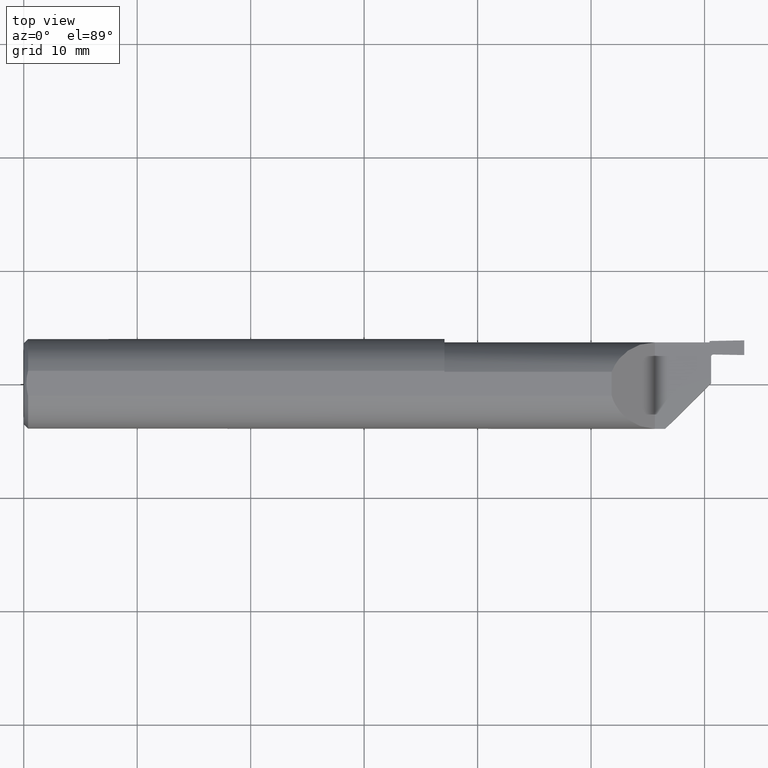
[diagram: clean part render]
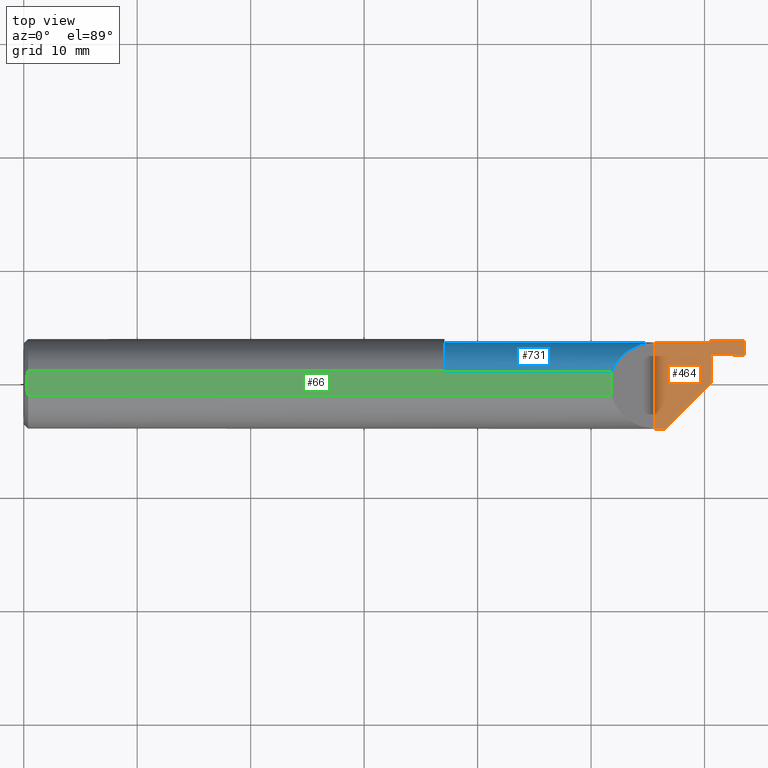
[diagram: same view with three faces highlighted in distinct colors, each labeled with its STEP entity id]
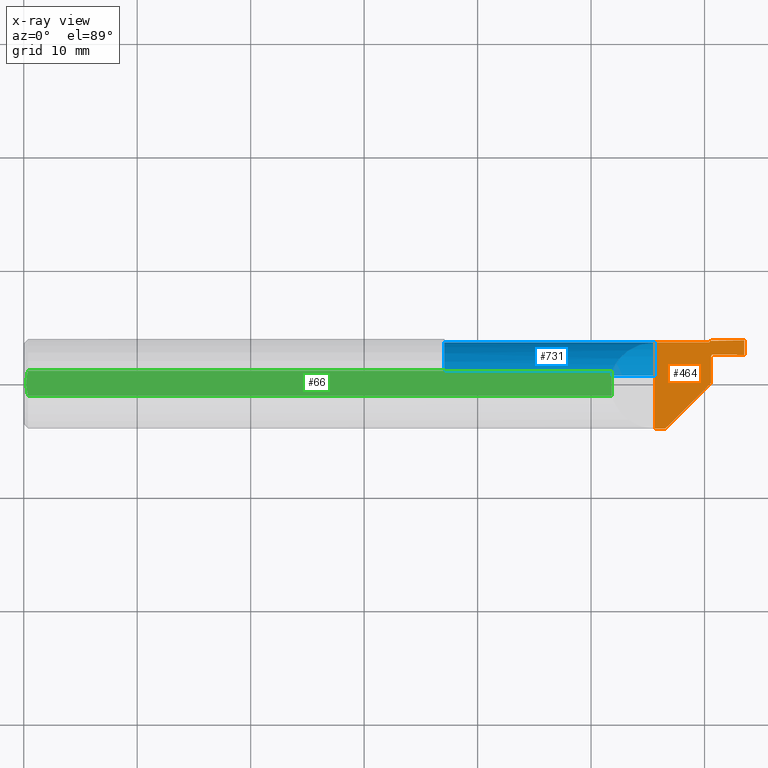
[diagram: x-ray of the same camera — body ghosted, the three highlighted faces saturated]
A machine part, top view with three faces highlighted in distinct colors.
The next image is the same camera in x-ray (body ghosted, the three faces saturated) — at least one of them is partly hidden behind the body in this view.
Their STEP definitions:

[orange] entity #464 — the highlighted planar face has unit normal (0, 0, -1).
#14 = EDGE_CURVE ( 'NONE', #148, #140, #558, .T. ) ;
#20 = CARTESIAN_POINT ( 'NONE',  ( 2.377000000000000224, 0.1440992383597803073, 0.000000000000000000 ) ) ;
#41 = VERTEX_POINT ( 'NONE', #504 ) ;
#44 = PLANE ( 'NONE',  #367 ) ;
#49 = VECTOR ( 'NONE', #631, 39.37007874015748143 ) ;
#55 = CARTESIAN_POINT ( 'NONE',  ( 2.189999999999999947, -0.2560999999999999943, 0.000000000000000000 ) ) ;
#57 = ORIENTED_EDGE ( 'NONE', *, *, #275, .F. ) ;
#59 = ORIENTED_EDGE ( 'NONE', *, *, #231, .T. ) ;
#64 = CARTESIAN_POINT ( 'NONE',  ( 2.500000000000000000, 0.1510992383597803412, 2.987958743070287587E-17 ) ) ;
#80 = DIRECTION ( 'NONE',  ( -1.000000000000000000, 0.000000000000000000, 0.000000000000000000 ) ) ;
#135 = DIRECTION ( 'NONE',  ( -1.000000000000000000, 0.000000000000000000, 0.000000000000000000 ) ) ;
#139 = CARTESIAN_POINT ( 'NONE',  ( 2.630067462402516654, 0.1533695743610629103, 0.000000000000000000 ) ) ;
#140 = VERTEX_POINT ( 'NONE', #517 ) ;
#148 = VERTEX_POINT ( 'NONE', #774 ) ;
#164 = VERTEX_POINT ( 'NONE', #64 ) ;
#168 = CARTESIAN_POINT ( 'NONE',  ( 0.000000000000000000, -0.1560999999999999888, 0.000000000000000000 ) ) ;
#185 = DIRECTION ( 'NONE',  ( 0.000000000000000000, 1.000000000000000000, 0.000000000000000000 ) ) ;
#191 = EDGE_CURVE ( 'NONE', #824, #164, #376, .T. ) ;
#199 = CARTESIAN_POINT ( 'NONE',  ( 2.157499999999999751, -0.2235999999999995491, 0.000000000000000000 ) ) ;
#201 = EDGE_CURVE ( 'NONE', #333, #530, #651, .T. ) ;
#210 = DIRECTION ( 'NONE',  ( 0.000000000000000000, 1.000000000000000000, 0.000000000000000000 ) ) ;
#211 = AXIS2_PLACEMENT_3D ( 'NONE', #466, #527, #80 ) ;
#216 = LINE ( 'NONE', #336, #612 ) ;
#229 = ORIENTED_EDGE ( 'NONE', *, *, #372, .T. ) ;
#231 = EDGE_CURVE ( 'NONE', #513, #164, #262, .T. ) ;
#232 = CARTESIAN_POINT ( 'NONE',  ( 2.500000000000000000, 0.1000992383597803653, 0.000000000000000000 ) ) ;
#240 = EDGE_CURVE ( 'NONE', #148, #41, #521, .T. ) ;
#241 = VECTOR ( 'NONE', #709, 39.37007874015748143 ) ;
#245 = EDGE_CURVE ( 'NONE', #530, #824, #388, .T. ) ;
#251 = AXIS2_PLACEMENT_3D ( 'NONE', #525, #765, #135 ) ;
#255 = CARTESIAN_POINT ( 'NONE',  ( 1.460000000000000187, 0.1440992383597802795, 0.000000000000000000 ) ) ;
#262 = LINE ( 'NONE', #325, #289 ) ;
#264 = VECTOR ( 'NONE', #712, 39.37007874015748854 ) ;
#275 = EDGE_CURVE ( 'NONE', #782, #333, #827, .T. ) ;
#283 = DIRECTION ( 'NONE',  ( 0.9998476951563914916, -0.01745240643727535151, 0.000000000000000000 ) ) ;
#285 = VERTEX_POINT ( 'NONE', #403 ) ;
#287 = CARTESIAN_POINT ( 'NONE',  ( 2.379999999999999893, 0.1490046305683959127, 0.000000000000000000 ) ) ;
#289 = VECTOR ( 'NONE', #185, 39.37007874015748143 ) ;
#296 = FACE_OUTER_BOUND ( 'NONE', #717, .T. ) ;
#325 = CARTESIAN_POINT ( 'NONE',  ( 2.500000000000000000, -0.2560999999999999943, 0.000000000000000000 ) ) ;
#329 = CARTESIAN_POINT ( 'NONE',  ( 2.196310008884322595, 0.1054001668727518604, 0.000000000000000000 ) ) ;
#333 = VERTEX_POINT ( 'NONE', #20 ) ;
#336 = CARTESIAN_POINT ( 'NONE',  ( 2.385000000000000231, -0.2560999999999999943, 0.000000000000000000 ) ) ;
#345 = ORIENTED_EDGE ( 'NONE', *, *, #201, .F. ) ;
#352 = CARTESIAN_POINT ( 'NONE',  ( 2.189999999999999947, -0.2560999999999999943, 0.000000000000000000 ) ) ;
#356 = VECTOR ( 'NONE', #721, 39.37007874015748143 ) ;
#367 = AXIS2_PLACEMENT_3D ( 'NONE', #352, #754, #697 ) ;
#372 = EDGE_CURVE ( 'NONE', #621, #513, #528, .T. ) ;
#373 = LINE ( 'NONE', #55, #495 ) ;
#376 = LINE ( 'NONE', #139, #264 ) ;
#385 = DIRECTION ( 'NONE',  ( 3.711749991391663214E-17, 1.000000000000000000, 0.000000000000000000 ) ) ;
#388 = LINE ( 'NONE', #719, #566 ) ;
#403 = CARTESIAN_POINT ( 'NONE',  ( 2.385000000000000231, 0.09396571168274749086, 0.000000000000000000 ) ) ;
#410 = VECTOR ( 'NONE', #283, 39.37007874015747433 ) ;
#428 = ORIENTED_EDGE ( 'NONE', *, *, #752, .T. ) ;
#460 = CARTESIAN_POINT ( 'NONE',  ( 2.189999999999999947, 0.1440992383597802240, 0.000000000000000000 ) ) ;
#463 = ORIENTED_EDGE ( 'NONE', *, *, #716, .T. ) ;
#464 = ADVANCED_FACE ( 'NONE', ( #296 ), #44, .F. ) ;
#466 = CARTESIAN_POINT ( 'NONE',  ( 2.393000000000000238, 0.09396571168274749086, 0.000000000000000000 ) ) ;
#472 = ORIENTED_EDGE ( 'NONE', *, *, #588, .F. ) ;
#479 = ORIENTED_EDGE ( 'NONE', *, *, #14, .F. ) ;
#495 = VECTOR ( 'NONE', #655, 39.37007874015748143 ) ;
#504 = CARTESIAN_POINT ( 'NONE',  ( 2.385000000000000231, 0.003900000000000025408, 0.000000000000000000 ) ) ;
#513 = VERTEX_POINT ( 'NONE', #232 ) ;
#517 = CARTESIAN_POINT ( 'NONE',  ( 2.189999999999999947, -0.1560999999999999888, 0.000000000000000000 ) ) ;
#521 = LINE ( 'NONE', #199, #356 ) ;
#525 = CARTESIAN_POINT ( 'NONE',  ( 2.377000000000000224, 0.1470992383597802822, 0.000000000000000000 ) ) ;
#527 = DIRECTION ( 'NONE',  ( 0.000000000000000000, 0.000000000000000000, -1.000000000000000000 ) ) ;
#528 = LINE ( 'NONE', #329, #410 ) ;
#530 = VERTEX_POINT ( 'NONE', #638 ) ;
#558 = LINE ( 'NONE', #168, #49 ) ;
#566 = VECTOR ( 'NONE', #385, 39.37007874015748143 ) ;
#588 = EDGE_CURVE ( 'NONE', #140, #782, #373, .T. ) ;
#612 = VECTOR ( 'NONE', #210, 39.37007874015748143 ) ;
#621 = VERTEX_POINT ( 'NONE', #708 ) ;
#631 = DIRECTION ( 'NONE',  ( -1.000000000000000000, -0.000000000000000000, -0.000000000000000000 ) ) ;
#638 = CARTESIAN_POINT ( 'NONE',  ( 2.379999999999999893, 0.1470992383597803099, 0.000000000000000000 ) ) ;
#651 = CIRCLE ( 'NONE', #251, 0.002999999999999940648 ) ;
#652 = ORIENTED_EDGE ( 'NONE', *, *, #240, .T. ) ;
#655 = DIRECTION ( 'NONE',  ( 0.000000000000000000, 1.000000000000000000, 0.000000000000000000 ) ) ;
#681 = ORIENTED_EDGE ( 'NONE', *, *, #191, .F. ) ;
#697 = DIRECTION ( 'NONE',  ( -1.000000000000000000, 0.000000000000000000, -0.000000000000000000 ) ) ;
#708 = CARTESIAN_POINT ( 'NONE',  ( 2.393139705841341502, 0.1019644917325672473, -2.881245930817777536E-17 ) ) ;
#709 = DIRECTION ( 'NONE',  ( 1.000000000000000000, -3.711749991391663214E-17, 0.000000000000000000 ) ) ;
#712 = DIRECTION ( 'NONE',  ( 0.9998476951563914916, 0.01745240643726934937, 0.000000000000000000 ) ) ;
#714 = ORIENTED_EDGE ( 'NONE', *, *, #245, .F. ) ;
#716 = EDGE_CURVE ( 'NONE', #285, #621, #825, .T. ) ;
#717 = EDGE_LOOP ( 'NONE', ( #714, #345, #57, #472, #479, #652, #428, #463, #229, #59, #681 ) ) ;
#719 = CARTESIAN_POINT ( 'NONE',  ( 2.379999999999999893, -0.2560999999999999943, 0.000000000000000000 ) ) ;
#721 = DIRECTION ( 'NONE',  ( 0.7071067811865486830, 0.7071067811865464625, 0.000000000000000000 ) ) ;
#752 = EDGE_CURVE ( 'NONE', #41, #285, #216, .T. ) ;
#754 = DIRECTION ( 'NONE',  ( 0.000000000000000000, 0.000000000000000000, -1.000000000000000000 ) ) ;
#765 = DIRECTION ( 'NONE',  ( -0.000000000000000000, -0.000000000000000000, 1.000000000000000000 ) ) ;
#774 = CARTESIAN_POINT ( 'NONE',  ( 2.224999999999999645, -0.1560999999999999888, 0.000000000000000000 ) ) ;
#782 = VERTEX_POINT ( 'NONE', #460 ) ;
#824 = VERTEX_POINT ( 'NONE', #287 ) ;
#825 = CIRCLE ( 'NONE', #211, 0.008000000000000024453 ) ;
#827 = LINE ( 'NONE', #255, #241 ) ;

[blue] entity #731 — the highlighted cylindrical surface (partial cylindrical patch) has radius 4.064 mm, axis along (-1, 0, -0).
#2 = CARTESIAN_POINT ( 'NONE',  ( 1.918500000000000316, 0.03081474338883895270, -0.1530283032313957403 ) ) ;
#5 = CARTESIAN_POINT ( 'NONE',  ( 2.371244399044610596, 0.1398354349246319905, -0.03676311797255334135 ) ) ;
#11 = DIRECTION ( 'NONE',  ( 0.000000000000000000, -1.000000000000000000, 0.000000000000000000 ) ) ;
#19 = DIRECTION ( 'NONE',  ( 1.000000000000000000, -3.711749991391663214E-17, 0.000000000000000000 ) ) ;
#20 = CARTESIAN_POINT ( 'NONE',  ( 2.377000000000000224, 0.1440992383597803073, 0.000000000000000000 ) ) ;
#21 = CIRCLE ( 'NONE', #760, 0.1599999999999999756 ) ;
#24 = AXIS2_PLACEMENT_3D ( 'NONE', #40, #633, #47 ) ;
#25 = CARTESIAN_POINT ( 'NONE',  ( 2.377000000000000224, 0.1418538182356731125, -0.02671128091613287833 ) ) ;
#35 = EDGE_LOOP ( 'NONE', ( #623, #102, #260, #660, #225, #162, #224, #156, #705, #484 ) ) ;
#40 = CARTESIAN_POINT ( 'NONE',  ( 2.189999999999999947, -0.01590076164021980015, 0.000000000000000000 ) ) ;
#43 = EDGE_CURVE ( 'NONE', #318, #344, #21, .T. ) ;
#47 = DIRECTION ( 'NONE',  ( 0.000000000000000000, 0.000000000000000000, -1.000000000000000000 ) ) ;
#58 = B_SPLINE_CURVE_WITH_KNOTS ( 'NONE', 3,
 ( #124, #375, #265, #65, #641, #653, #383, #826, #5, #829, #718, #197 ),
 .UNSPECIFIED., .F., .F.,
 ( 4, 2, 2, 2, 2, 4 ),
 ( 6.925468430849999991E-05, 0.0001140880610904695253, 0.0001589214378724390642, 0.0002485881914363778167, 0.0004279216985642606344, 0.0007865887128200264866 ),
 .UNSPECIFIED. ) ;
#65 = CARTESIAN_POINT ( 'NONE',  ( 2.373515878567528326, 0.1416355429769736440, -0.02797407924118477593 ) ) ;
#102 = ORIENTED_EDGE ( 'NONE', *, *, #658, .F. ) ;
#120 = CARTESIAN_POINT ( 'NONE',  ( 2.371295404501523318, 0.08075183299855108465, -0.1377838268075109174 ) ) ;
#124 = CARTESIAN_POINT ( 'NONE',  ( 2.375229166716647189, 0.1418801891223627210, -0.02655506686972410046 ) ) ;
#132 = CARTESIAN_POINT ( 'NONE',  ( 2.039999999999999591, 0.03950672882812745340, 0.1500999999999999834 ) ) ;
#137 = CARTESIAN_POINT ( 'NONE',  ( 2.370342329189448094, 0.1353534810585909909, -0.05217426631596511211 ) ) ;
#156 = ORIENTED_EDGE ( 'NONE', *, *, #597, .T. ) ;
#162 = ORIENTED_EDGE ( 'NONE', *, *, #348, .F. ) ;
#166 = CARTESIAN_POINT ( 'NONE',  ( 2.377000000000000224, -0.01590076164021980709, 0.000000000000000000 ) ) ;
#182 =( BOUNDED_CURVE ( )  B_SPLINE_CURVE ( 3, ( #368, #324, #261, #592 ),
 .UNSPECIFIED., .F., .T. ) 
 B_SPLINE_CURVE_WITH_KNOTS ( ( 4, 4 ),
 ( 4.713013980425380112, 5.929564525929066576 ),
 .UNSPECIFIED. ) 
 CURVE ( )  GEOMETRIC_REPRESENTATION_ITEM ( )  RATIONAL_B_SPLINE_CURVE ( ( 1.000000000000000000, 0.8804232255846620170, 0.8804232255846620170, 1.000000000000000000 ) ) 
 REPRESENTATION_ITEM ( '' )  );
#184 = CARTESIAN_POINT ( 'NONE',  ( 2.370342329189448094, 0.1353534810585909909, -0.05217426631596511211 ) ) ;
#197 = CARTESIAN_POINT ( 'NONE',  ( 2.370342329189448094, 0.1353534810585909909, -0.05217426631596511211 ) ) ;
#208 = VERTEX_POINT ( 'NONE', #132 ) ;
#219 = EDGE_CURVE ( 'NONE', #776, #344, #457, .T. ) ;
#224 = ORIENTED_EDGE ( 'NONE', *, *, #569, .T. ) ;
#225 = ORIENTED_EDGE ( 'NONE', *, *, #474, .T. ) ;
#241 = VECTOR ( 'NONE', #709, 39.37007874015748143 ) ;
#255 = CARTESIAN_POINT ( 'NONE',  ( 1.460000000000000187, 0.1440992383597802795, 0.000000000000000000 ) ) ;
#258 = CARTESIAN_POINT ( 'NONE',  ( 2.370639515830912813, 0.1183276697718876336, -0.1015324341320246460 ) ) ;
#260 = ORIENTED_EDGE ( 'NONE', *, *, #544, .F. ) ;
#261 = CARTESIAN_POINT ( 'NONE',  ( 2.063975418773851711, 0.1044566178690502362, 0.1261245812261483912 ) ) ;
#265 = CARTESIAN_POINT ( 'NONE',  ( 2.374165026253837407, 0.1418026415305609633, -0.02701616201808509227 ) ) ;
#275 = EDGE_CURVE ( 'NONE', #782, #333, #827, .T. ) ;
#282 = CARTESIAN_POINT ( 'NONE',  ( 1.460000000000000187, -0.01590076164021977240, 0.000000000000000000 ) ) ;
#294 = DIRECTION ( 'NONE',  ( -1.000000000000000000, 3.711749991391663214E-17, -0.000000000000000000 ) ) ;
#301 = CARTESIAN_POINT ( 'NONE',  ( 1.460000000000000187, -0.01590076164021977240, 0.000000000000000000 ) ) ;
#318 = VERTEX_POINT ( 'NONE', #601 ) ;
#324 = CARTESIAN_POINT ( 'NONE',  ( 2.120766287695780239, 0.1440559360311356729, 0.06933371230421989106 ) ) ;
#333 = VERTEX_POINT ( 'NONE', #20 ) ;
#337 = CARTESIAN_POINT ( 'NONE',  ( 2.376409719787352159, 0.1418626297334948938, -0.02665924095077311026 ) ) ;
#344 = VERTEX_POINT ( 'NONE', #659 ) ;
#347 = CARTESIAN_POINT ( 'NONE',  ( 2.375229166716647189, 0.1418801891223627210, -0.02655506686972410046 ) ) ;
#348 = EDGE_CURVE ( 'NONE', #587, #771, #445, .T. ) ;
#368 = CARTESIAN_POINT ( 'NONE',  ( 2.189999999999999947, 0.1440992071097771388, 9.999999999993541345E-05 ) ) ;
#375 = CARTESIAN_POINT ( 'NONE',  ( 2.374634460130373270, 0.1418890240198467378, -0.02650257298851747823 ) ) ;
#381 = CARTESIAN_POINT ( 'NONE',  ( 2.375229166716647189, 0.1418801891223627210, -0.02655506686972410046 ) ) ;
#383 = CARTESIAN_POINT ( 'NONE',  ( 2.372340772030441247, 0.1410310789320680103, -0.03120366545082840781 ) ) ;
#445 = B_SPLINE_CURVE_WITH_KNOTS ( 'NONE', 3,
 ( #347, #742, #337, #664 ),
 .UNSPECIFIED., .F., .F.,
 ( 4, 4 ),
 ( 6.992893892674702526E-18, 4.515880543215112651E-05 ),
 .UNSPECIFIED. ) ;
#456 = LINE ( 'NONE', #663, #661 ) ;
#457 = LINE ( 'NONE', #2, #508 ) ;
#460 = CARTESIAN_POINT ( 'NONE',  ( 2.189999999999999947, 0.1440992383597802240, 0.000000000000000000 ) ) ;
#465 = AXIS2_PLACEMENT_3D ( 'NONE', #282, #677, #11 ) ;
#474 = EDGE_CURVE ( 'NONE', #333, #771, #789, .T. ) ;
#484 = ORIENTED_EDGE ( 'NONE', *, *, #43, .F. ) ;
#508 = VECTOR ( 'NONE', #590, 39.37007874015748143 ) ;
#523 = AXIS2_PLACEMENT_3D ( 'NONE', #166, #808, #806 ) ;
#531 = CYLINDRICAL_SURFACE ( 'NONE', #465, 0.1600000000000000311 ) ;
#535 = CARTESIAN_POINT ( 'NONE',  ( 2.372167059642986242, 0.03081474338882099831, -0.1530283032314002645 ) ) ;
#544 = EDGE_CURVE ( 'NONE', #782, #725, #549, .T. ) ;
#549 = CIRCLE ( 'NONE', #24, 0.1600000000000000311 ) ;
#569 = EDGE_CURVE ( 'NONE', #587, #801, #58, .T. ) ;
#587 = VERTEX_POINT ( 'NONE', #381 ) ;
#590 = DIRECTION ( 'NONE',  ( -1.000000000000000000, 3.711749991391663214E-17, -0.000000000000000000 ) ) ;
#592 = CARTESIAN_POINT ( 'NONE',  ( 2.039999999999999591, 0.03950672882812745340, 0.1500999999999999834 ) ) ;
#597 = EDGE_CURVE ( 'NONE', #801, #776, #723, .T. ) ;
#601 = CARTESIAN_POINT ( 'NONE',  ( 1.460000000000000187, 0.03950672882812750197, 0.1500999999999999834 ) ) ;
#603 = FACE_OUTER_BOUND ( 'NONE', #35, .T. ) ;
#623 = ORIENTED_EDGE ( 'NONE', *, *, #704, .T. ) ;
#633 = DIRECTION ( 'NONE',  ( 1.000000000000000000, 0.000000000000000000, -0.000000000000000000 ) ) ;
#641 = CARTESIAN_POINT ( 'NONE',  ( 2.373276407737987981, 0.1415419878271635956, -0.02849697985933954958 ) ) ;
#644 = CARTESIAN_POINT ( 'NONE',  ( 2.372167059642986242, 0.03081474338882099831, -0.1530283032314002645 ) ) ;
#653 = CARTESIAN_POINT ( 'NONE',  ( 2.372637208118146823, 0.1412452079022298024, -0.03010536730128773875 ) ) ;
#658 = EDGE_CURVE ( 'NONE', #725, #208, #182, .T. ) ;
#659 = CARTESIAN_POINT ( 'NONE',  ( 1.460000000000000187, 0.03081474338883832820, -0.1530283032313958513 ) ) ;
#660 = ORIENTED_EDGE ( 'NONE', *, *, #275, .T. ) ;
#661 = VECTOR ( 'NONE', #19, 39.37007874015748143 ) ;
#663 = CARTESIAN_POINT ( 'NONE',  ( 1.460000000000000187, 0.03950672882812769626, 0.1500999999999999834 ) ) ;
#664 = CARTESIAN_POINT ( 'NONE',  ( 2.377000000000000224, 0.1418538182356731125, -0.02671128091613287833 ) ) ;
#677 = DIRECTION ( 'NONE',  ( -1.000000000000000000, 3.711749991391663214E-17, -0.000000000000000000 ) ) ;
#704 = EDGE_CURVE ( 'NONE', #318, #208, #456, .T. ) ;
#705 = ORIENTED_EDGE ( 'NONE', *, *, #219, .T. ) ;
#709 = DIRECTION ( 'NONE',  ( 1.000000000000000000, -3.711749991391663214E-17, 0.000000000000000000 ) ) ;
#718 = CARTESIAN_POINT ( 'NONE',  ( 2.370316278975133084, 0.1368458968372529283, -0.04784772309202734580 ) ) ;
#723 =( BOUNDED_CURVE ( )  B_SPLINE_CURVE ( 3, ( #184, #258, #120, #644 ),
 .UNSPECIFIED., .F., .F. ) 
 B_SPLINE_CURVE_WITH_KNOTS ( ( 4, 4 ),
 ( 0.3321636411614662943, 1.274508393031196229 ),
 .UNSPECIFIED. ) 
 CURVE ( )  GEOMETRIC_REPRESENTATION_ITEM ( )  RATIONAL_B_SPLINE_CURVE ( ( 1.000000000000000000, 0.9273578150799784980, 0.9273578150799784980, 1.000000000000000000 ) ) 
 REPRESENTATION_ITEM ( '' )  );
#725 = VERTEX_POINT ( 'NONE', #727 ) ;
#727 = CARTESIAN_POINT ( 'NONE',  ( 2.189999999999999947, 0.1440992071097771388, 9.999999999993541345E-05 ) ) ;
#731 = ADVANCED_FACE ( 'NONE', ( #603 ), #531, .T. ) ;
#742 = CARTESIAN_POINT ( 'NONE',  ( 2.375819442024834416, 0.1418714200577350093, -0.02660716959501593232 ) ) ;
#759 = DIRECTION ( 'NONE',  ( 0.000000000000000000, -1.000000000000000000, 0.000000000000000000 ) ) ;
#760 = AXIS2_PLACEMENT_3D ( 'NONE', #301, #294, #759 ) ;
#771 = VERTEX_POINT ( 'NONE', #25 ) ;
#776 = VERTEX_POINT ( 'NONE', #535 ) ;
#782 = VERTEX_POINT ( 'NONE', #460 ) ;
#789 = CIRCLE ( 'NONE', #523, 0.1600000000000001144 ) ;
#801 = VERTEX_POINT ( 'NONE', #137 ) ;
#806 = DIRECTION ( 'NONE',  ( 0.000000000000000000, -1.000000000000000000, 0.000000000000000000 ) ) ;
#808 = DIRECTION ( 'NONE',  ( -1.000000000000000000, 3.711749991391663214E-17, -0.000000000000000000 ) ) ;
#826 = CARTESIAN_POINT ( 'NONE',  ( 2.371572883743740423, 0.1403480503490430187, -0.03451657636320138584 ) ) ;
#827 = LINE ( 'NONE', #255, #241 ) ;
#829 = CARTESIAN_POINT ( 'NONE',  ( 2.370491524491316504, 0.1381538683991517802, -0.04345491937206180655 ) ) ;

[green] entity #66 — the highlighted planar face has unit normal (0, 0, -1).
#8 = VECTOR ( 'NONE', #804, 39.37007874015748143 ) ;
#19 = DIRECTION ( 'NONE',  ( 1.000000000000000000, -3.711749991391663214E-17, 0.000000000000000000 ) ) ;
#61 = CARTESIAN_POINT ( 'NONE',  ( 0.000000000000000000, -0.04286257108480545641, 0.1500999999999999834 ) ) ;
#66 = ADVANCED_FACE ( 'NONE', ( #552 ), #435, .F. ) ;
#79 = VERTEX_POINT ( 'NONE', #424 ) ;
#96 = VERTEX_POINT ( 'NONE', #496 ) ;
#100 = CARTESIAN_POINT ( 'NONE',  ( 1.460000000000000187, -0.2561000000000000498, 0.1500999999999999834 ) ) ;
#117 = VECTOR ( 'NONE', #402, 39.37007874015748143 ) ;
#118 = CARTESIAN_POINT ( 'NONE',  ( 2.039999999999999591, -0.04286257108480545641, 0.1500999999999999834 ) ) ;
#121 = LINE ( 'NONE', #61, #314 ) ;
#132 = CARTESIAN_POINT ( 'NONE',  ( 2.039999999999999591, 0.03950672882812745340, 0.1500999999999999834 ) ) ;
#151 = ORIENTED_EDGE ( 'NONE', *, *, #799, .F. ) ;
#155 = CARTESIAN_POINT ( 'NONE',  ( 0.008999999999999475433, 0.007249779851909510416, 0.1500999999999999834 ) ) ;
#160 = CARTESIAN_POINT ( 'NONE',  ( 0.01499999999999970281, 0.04286257108480545641, 0.1500999999999999834 ) ) ;
#161 = ORIENTED_EDGE ( 'NONE', *, *, #370, .T. ) ;
#171 = CARTESIAN_POINT ( 'NONE',  ( 2.039999999999999591, 0.04286257108480545641, 0.1500999999999999834 ) ) ;
#208 = VERTEX_POINT ( 'NONE', #132 ) ;
#209 = B_SPLINE_CURVE_WITH_KNOTS ( 'NONE', 3,
 ( #608, #471, #536, #734, #155, #781 ),
 .UNSPECIFIED., .F., .F.,
 ( 4, 2, 4 ),
 ( 0.003872957156311483077, 0.004417820756918436169, 0.004962684357525389695 ),
 .UNSPECIFIED. ) ;
#263 = EDGE_CURVE ( 'NONE', #609, #96, #121, .T. ) ;
#273 = VERTEX_POINT ( 'NONE', #580 ) ;
#278 = ORIENTED_EDGE ( 'NONE', *, *, #537, .T. ) ;
#279 = CARTESIAN_POINT ( 'NONE',  ( 0.000000000000000000, 0.04286257108480545641, 0.1500999999999999834 ) ) ;
#290 = DIRECTION ( 'NONE',  ( 0.000000000000000000, 0.000000000000000000, -1.000000000000000000 ) ) ;
#314 = VECTOR ( 'NONE', #374, 39.37007874015748143 ) ;
#318 = VERTEX_POINT ( 'NONE', #601 ) ;
#331 = CARTESIAN_POINT ( 'NONE',  ( 0.01308010236197404939, -0.03587054952121920826, 0.1500999999999999834 ) ) ;
#341 = CARTESIAN_POINT ( 'NONE',  ( 0.01156122974740471897, -0.02873113156979006239, 0.1500999999999999279 ) ) ;
#349 = EDGE_LOOP ( 'NONE', ( #440, #766, #151, #161, #444, #730, #278 ) ) ;
#363 = DIRECTION ( 'NONE',  ( -0.000000000000000000, 1.000000000000000000, 0.000000000000000000 ) ) ;
#365 = LINE ( 'NONE', #100, #8 ) ;
#370 = EDGE_CURVE ( 'NONE', #401, #273, #209, .T. ) ;
#374 = DIRECTION ( 'NONE',  ( -1.000000000000000000, -0.000000000000000000, -0.000000000000000000 ) ) ;
#401 = VERTEX_POINT ( 'NONE', #160 ) ;
#402 = DIRECTION ( 'NONE',  ( 1.000000000000000000, 0.000000000000000000, 0.000000000000000000 ) ) ;
#424 = CARTESIAN_POINT ( 'NONE',  ( 1.460000000000000187, 0.04286257108480545641, 0.1500999999999999834 ) ) ;
#435 = PLANE ( 'NONE',  #481 ) ;
#440 = ORIENTED_EDGE ( 'NONE', *, *, #704, .F. ) ;
#444 = ORIENTED_EDGE ( 'NONE', *, *, #763, .T. ) ;
#456 = LINE ( 'NONE', #663, #661 ) ;
#471 = CARTESIAN_POINT ( 'NONE',  ( 0.01308967235647841461, 0.03590540221680477151, 0.1500999999999999834 ) ) ;
#475 = LINE ( 'NONE', #279, #117 ) ;
#477 = EDGE_CURVE ( 'NONE', #79, #318, #365, .T. ) ;
#481 = AXIS2_PLACEMENT_3D ( 'NONE', #642, #290, #819 ) ;
#496 = CARTESIAN_POINT ( 'NONE',  ( 0.01499999999999943046, -0.04286257108480568540, 0.1500999999999999834 ) ) ;
#502 = LINE ( 'NONE', #171, #596 ) ;
#536 = CARTESIAN_POINT ( 'NONE',  ( 0.01158539406439745324, 0.02885992225672989048, 0.1500999999999999834 ) ) ;
#537 = EDGE_CURVE ( 'NONE', #609, #208, #502, .T. ) ;
#552 = FACE_OUTER_BOUND ( 'NONE', #349, .T. ) ;
#580 = CARTESIAN_POINT ( 'NONE',  ( 0.008999999999998765932, 6.845491512164019265E-17, 0.1500999999999999834 ) ) ;
#596 = VECTOR ( 'NONE', #363, 39.37007874015748143 ) ;
#601 = CARTESIAN_POINT ( 'NONE',  ( 1.460000000000000187, 0.03950672882812750197, 0.1500999999999999834 ) ) ;
#607 = CARTESIAN_POINT ( 'NONE',  ( 0.009526811708237875945, -0.01443825677426626916, 0.1500999999999999834 ) ) ;
#608 = CARTESIAN_POINT ( 'NONE',  ( 0.01499999999999970281, 0.04286257108480545641, 0.1500999999999999834 ) ) ;
#609 = VERTEX_POINT ( 'NONE', #118 ) ;
#613 = CARTESIAN_POINT ( 'NONE',  ( 0.008999999999998765932, 6.845491512164019265E-17, 0.1500999999999999834 ) ) ;
#642 = CARTESIAN_POINT ( 'NONE',  ( 0.000000000000000000, -0.2560999999999999943, 0.1500999999999999834 ) ) ;
#661 = VECTOR ( 'NONE', #19, 39.37007874015748143 ) ;
#663 = CARTESIAN_POINT ( 'NONE',  ( 1.460000000000000187, 0.03950672882812769626, 0.1500999999999999834 ) ) ;
#704 = EDGE_CURVE ( 'NONE', #318, #208, #456, .T. ) ;
#730 = ORIENTED_EDGE ( 'NONE', *, *, #263, .F. ) ;
#733 = CARTESIAN_POINT ( 'NONE',  ( 0.01499999999999943046, -0.04286257108480568540, 0.1500999999999999834 ) ) ;
#734 = CARTESIAN_POINT ( 'NONE',  ( 0.009538385840405073576, 0.01455983656044579008, 0.1500999999999999279 ) ) ;
#763 = EDGE_CURVE ( 'NONE', #273, #96, #817, .T. ) ;
#766 = ORIENTED_EDGE ( 'NONE', *, *, #477, .F. ) ;
#781 = CARTESIAN_POINT ( 'NONE',  ( 0.008999999999998765932, 6.845491512164019265E-17, 0.1500999999999999834 ) ) ;
#795 = CARTESIAN_POINT ( 'NONE',  ( 0.008999999999999459821, -0.007244529225202415296, 0.1500999999999999834 ) ) ;
#799 = EDGE_CURVE ( 'NONE', #401, #79, #475, .T. ) ;
#804 = DIRECTION ( 'NONE',  ( -3.711749991391663214E-17, -1.000000000000000000, 0.000000000000000000 ) ) ;
#817 = B_SPLINE_CURVE_WITH_KNOTS ( 'NONE', 3,
 ( #613, #795, #607, #341, #331, #733 ),
 .UNSPECIFIED., .F., .F.,
 ( 4, 2, 4 ),
 ( 0.004962684357525389695, 0.005507153342650034089, 0.006051622327774679351 ),
 .UNSPECIFIED. ) ;
#819 = DIRECTION ( 'NONE',  ( -1.000000000000000000, 0.000000000000000000, -0.000000000000000000 ) ) ;